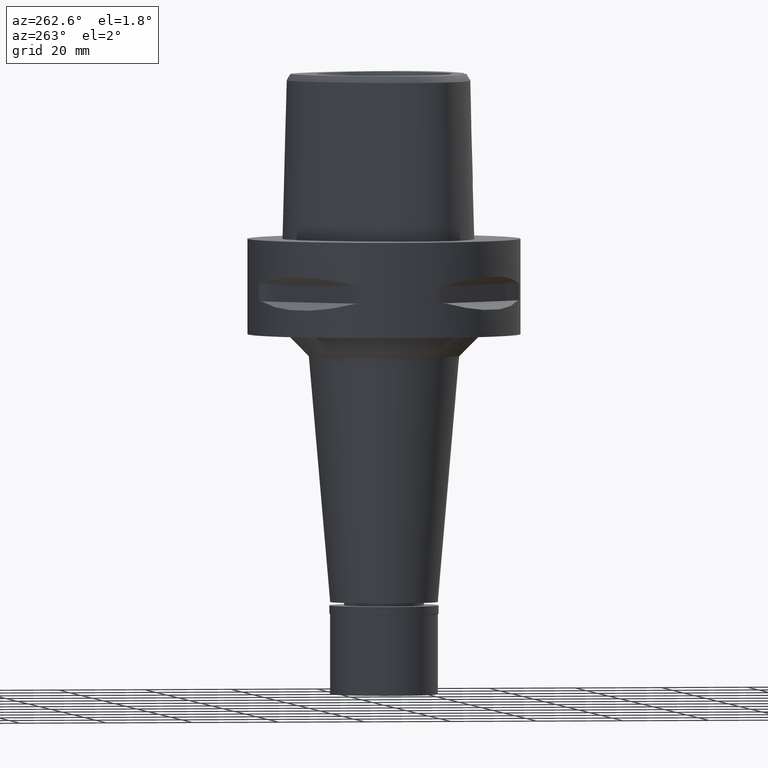
[diagram: clean part render]
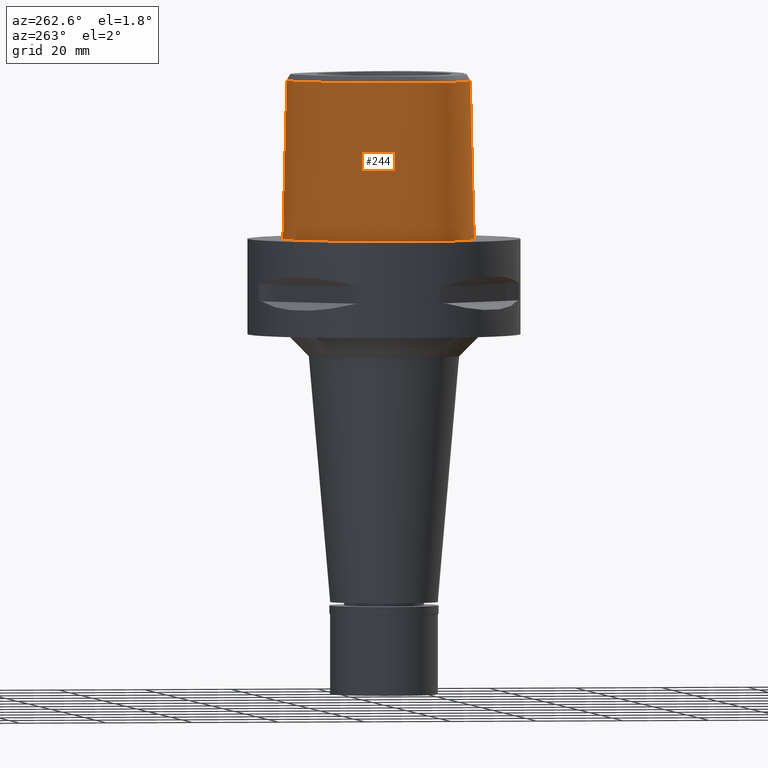
[diagram: same view with one face highlighted and labeled with its STEP entity id]
A machine part, auxiliary view. The second image highlights one B-rep face of the part: STEP entity #244.
In plain terms, the highlighted face is a freeform B-spline surface patch.
Its self-contained STEP definition (entity closure, byte-faithful):
#4 = CARTESIAN_POINT ( 'NONE',  ( -10.34823247807999991, 18.70095511042000069, 24.59139597767000041 ) ) ;
#19 = CARTESIAN_POINT ( 'NONE',  ( -5.098437017460036635, 22.52602539107009605, -1.896419848414210296E-08 ) ) ;
#52 = CARTESIAN_POINT ( 'NONE',  ( 0.4560943669544000323, -20.69106768041000066, -0.7304375042870999701 ) ) ;
#59 = CARTESIAN_POINT ( 'NONE',  ( 2.041042029990999821E-08, -19.88004246002000031, 31.80000004972000127 ) ) ;
#62 = CARTESIAN_POINT ( 'NONE',  ( -3.637738201363999835, -19.56971413236999879, 36.52186244848000030 ) ) ;
#79 = CARTESIAN_POINT ( 'NONE',  ( -6.175998627187000878, -19.37631808830999702, 37.25231271863999893 ) ) ;
#124 = CARTESIAN_POINT ( 'NONE',  ( -6.344715575917999395, -20.31619964533000200, -0.7304375042870999701 ) ) ;
#165 = CARTESIAN_POINT ( 'NONE',  ( -7.300578999876572439, -19.07170748891979528, 36.52186244848009267 ) ) ;
#200 = CARTESIAN_POINT ( 'NONE',  ( 0.0000000000000000000, -20.18628283968999781, 19.55000000000000071 ) ) ;
#205 = CARTESIAN_POINT ( 'NONE',  ( -3.637738201363999835, -19.56971413236999879, 36.52186244848000030 ) ) ;
#235 = CARTESIAN_POINT ( 'NONE',  ( -2.841055161952163122, -20.10000556631501922, 18.38634273630946581 ) ) ;
#244 = ADVANCED_FACE ( 'NONE', ( #748 ), #4528, .T. ) ;
#259 = CARTESIAN_POINT ( 'NONE',  ( -3.081149392577402502, -20.08583124627777750, 18.14629112890300533 ) ) ;
#282 = CARTESIAN_POINT ( 'NONE',  ( -2.360389010911049912, -20.12578017861218527, 18.79373387522194605 ) ) ;
#308 = CARTESIAN_POINT ( 'NONE',  ( -3.294464282139044631, -20.19175818983875814, 13.14063372506621619 ) ) ;
#312 = CARTESIAN_POINT ( 'NONE',  ( -17.25769868647000038, 9.963736633597999770, 37.25231271863999893 ) ) ;
#330 = CARTESIAN_POINT ( 'NONE',  ( -3.538328569005044333, -20.05892019842456619, 17.47427695038981810 ) ) ;
#333 = CARTESIAN_POINT ( 'NONE',  ( -20.94844325464999812, -10.61175396820999950, -0.7304375042870999701 ) ) ;
#352 = CARTESIAN_POINT ( 'NONE',  ( -1.592612062464956013, -20.34460894491118310, 11.77623291199201816 ) ) ;
#357 = CARTESIAN_POINT ( 'NONE',  ( -7.259695513654000010, 20.78233577661999831, 24.59139597767000041 ) ) ;
#359 = ORIENTED_EDGE ( 'NONE', *, *, #2860, .T. ) ;
#371 = CARTESIAN_POINT ( 'NONE',  ( 6.820263939085462450E-09, -19.98212988583477312, 27.71666688228245690 ) ) ;
#374 = VERTEX_POINT ( 'NONE', #3373 ) ;
#383 = CARTESIAN_POINT ( 'NONE',  ( -0.6149727124677999424, 23.51889464489000048, -0.7304375042870999701 ) ) ;
#423 = B_SPLINE_CURVE_WITH_KNOTS ( 'NONE', 3,
 ( #3112, #371, #3859, #1508 ),
 .UNSPECIFIED., .F., .F.,
 ( 4, 4 ),
 ( 0.0000000000000000000, 1.000000000000000000 ),
 .UNSPECIFIED. ) ;
#428 = CARTESIAN_POINT ( 'NONE',  ( -2.086814383339310019, -20.31269213283853503, 12.02647857451320412 ) ) ;
#431 = CARTESIAN_POINT ( 'NONE',  ( -1.886862291998999908, -20.71358859472999825, -0.7304375042870999701 ) ) ;
#441 = CARTESIAN_POINT ( 'NONE',  ( -1.656252726929893671, -20.15609978928698354, 19.19765142506412303 ) ) ;
#455 = CARTESIAN_POINT ( 'NONE',  ( -1.572984596531426860, -20.34569619827912845, 11.76794029727377122 ) ) ;
#461 = CARTESIAN_POINT ( 'NONE',  ( -11.13012658277000000, -18.61140123527999890, 11.93047923668999921 ) ) ;
#472 = CARTESIAN_POINT ( 'NONE',  ( -13.70645028110869212, 15.04851272300747489, 36.52186244848009267 ) ) ;
#474 = DIRECTION ( 'NONE',  ( 1.873945896586959657E-12, 0.02499051290962944413, -0.9996876883629776112 ) ) ;
#495 = CARTESIAN_POINT ( 'NONE',  ( -0.8941136475798194816, -20.17742596329177474, 19.45229334933474163 ) ) ;
#518 = CARTESIAN_POINT ( 'NONE',  ( -0.5036866637249096668, -20.18406862059044116, 19.52728785669985356 ) ) ;
#577 = CARTESIAN_POINT ( 'NONE',  ( -19.88562090098043456, 4.345879983792091394, 36.52186244848009267 ) ) ;
#615 = CARTESIAN_POINT ( 'NONE',  ( -2.887412005234532231, -20.23974548682601693, 12.66003157092501752 ) ) ;
#619 = B_SPLINE_CURVE_WITH_KNOTS ( 'NONE', 3,
 ( #879, #2435, #518, #495, #2074, #2868, #3977, #4430, #1976, #3929, #3538, #1593, #441, #3560, #4750, #2789, #2407, #2026, #4918, #5018, #2574, #282, #1840, #4975, #1787, #2270, #4146, #235, #4557, #3452, #259, #2604, #4177, #330, #1466, #3843, #3351, #1054, #2166, #1812, #3733, #3787, #3817, #695, #3430, #670, #1889, #1408, #4224, #3018, #1514, #2989, #3063, #1024, #2220, #4198, #2650, #933, #646, #3403, #1436, #4586, #2195, #2548, #1107, #1867, #1082, #3761, #2626, #4116, #2244, #308, #5000, #1492, #3039, #4608, #721, #615, #2961, #4529, #3375, #4946, #428, #1538, #2759, #3919, #1938, #3506, #352, #455, #2014, #4250, #2396, #1230, #2679 ),
 .UNSPECIFIED., .F., .F.,
 ( 4, 2, 2, 1, 1, 1, 2, 2, 2, 2, 1, 2, 2, 2, 1, 1, 1, 2, 2, 2, 2, 2, 1, 1, 2, 2, 2, 2, 1, 2, 2, 2, 2, 1, 1, 1, 2, 2, 2, 2, 1, 2, 2, 2, 1, 1, 1, 2, 2, 2, 2, 2, 1, 1, 2, 2, 4 ),
 ( 0.0000000000000000000, 0.06249999999999597544, 0.09374999999999399092, 0.1093749999999929085, 0.1171874999999923533, 0.1210937499999921035, 0.1230468749999918260, 0.1249999999999915484, 0.1562499999999856781, 0.1718749999999824862, 0.1796874999999810985, 0.1835937499999803768, 0.1874999999999796552, 0.2187499999999771017, 0.2343749999999757694, 0.2421874999999754086, 0.2460937499999749367, 0.2480468749999746869, 0.2499999999999744094, 0.3124999999999654721, 0.3437499999999609757, 0.3593749999999591438, 0.3671874999999578115, 0.3710937499999571454, 0.3730468749999572009, 0.3749999999999573119, 0.4374999999999618638, 0.4687499999999640843, 0.4843749999999652500, 0.4921874999999662492, 0.4999999999999672484, 0.5624999999999770184, 0.5937499999999821254, 0.6093749999999846789, 0.6171874999999859002, 0.6210937499999865663, 0.6230468749999867883, 0.6249999999999868994, 0.6562499999999910072, 0.6718749999999930056, 0.6796874999999941158, 0.6835937499999945599, 0.6874999999999948930, 0.7187499999999971134, 0.7343749999999980016, 0.7421874999999985567, 0.7460937499999986677, 0.7480468749999987788, 0.7499999999999988898, 0.8124999999999995559, 0.8437500000000000000, 0.8593750000000001110, 0.8671875000000001110, 0.8710937500000002220, 0.8730468750000002220, 0.8750000000000001110, 1.000000000000000000 ),
 .UNSPECIFIED. ) ;
#646 = CARTESIAN_POINT ( 'NONE',  ( -3.765489374950850454, -20.12204791086957201, 14.00864527312965357 ) ) ;
#656 = DIRECTION ( 'NONE',  ( -7.363425292475789222E-13, -0.02499051295389925070, -0.9996876883618708298 ) ) ;
#670 = CARTESIAN_POINT ( 'NONE',  ( -4.019649019913004828, -20.04316019033985086, 16.01163126943011505 ) ) ;
#690 = CARTESIAN_POINT ( 'NONE',  ( -14.67337964443364484, -17.21410156291689475, -1.896419848414210296E-08 ) ) ;
#695 = CARTESIAN_POINT ( 'NONE',  ( -3.925407708630975545, -20.04099055260220652, 16.53138977182821634 ) ) ;
#698 = CARTESIAN_POINT ( 'NONE',  ( -13.69241990883000071, 15.03666401625000049, 37.25231271863999893 ) ) ;
#721 = CARTESIAN_POINT ( 'NONE',  ( -2.904838724128466776, -20.23782704190360704, 12.67778573503113293 ) ) ;
#725 = CARTESIAN_POINT ( 'NONE',  ( -20.16779749023000079, 4.447573699151999627, 24.59139597767000041 ) ) ;
#748 = FACE_OUTER_BOUND ( 'NONE', #2901, .T. ) ;
#762 = CARTESIAN_POINT ( 'NONE',  ( -2.564517727054335783, 23.29328125046647457, -1.896419848414210296E-08 ) ) ;
#772 = CARTESIAN_POINT ( 'NONE',  ( -10.14358084944999838, 18.45723428854999781, 37.25231271863999893 ) ) ;
#783 = ORIENTED_EDGE ( 'NONE', *, *, #2977, .F. ) ;
#801 = CARTESIAN_POINT ( 'NONE',  ( -19.86834446285000055, 4.339653722477001097, 37.25231271863999893 ) ) ;
#802 = EDGE_CURVE ( 'NONE', #2323, #3339, #4592, .T. ) ;
#830 = CARTESIAN_POINT ( 'NONE',  ( -2.503154198993446489, -19.81241979316563473, 31.80000012753039940 ) ) ;
#846 = CARTESIAN_POINT ( 'NONE',  ( -20.65879055737000058, -10.48283622772000001, 11.93047923668999921 ) ) ;
#879 = CARTESIAN_POINT ( 'NONE',  ( 0.0000000000000000000, -20.18628283968999781, 19.55000000000000071 ) ) ;
#911 = CARTESIAN_POINT ( 'NONE',  ( -16.39211280191511122, -14.95758113319380733, 36.52186244848009267 ) ) ;
#925 = CARTESIAN_POINT ( 'NONE',  ( -16.57726045036999807, -15.19304475951000022, 24.59139597767000041 ) ) ;
#933 = CARTESIAN_POINT ( 'NONE',  ( -3.788010122578853611, -20.11815763408451474, 14.06624340821270103 ) ) ;
#935 = ORIENTED_EDGE ( 'NONE', *, *, #1833, .T. ) ;
#1024 = CARTESIAN_POINT ( 'NONE',  ( -3.952964639637182476, -20.08622609015915472, 14.60890045227376355 ) ) ;
#1049 = EDGE_CURVE ( 'NONE', #2323, #1413, #4520, .T. ) ;
#1054 = CARTESIAN_POINT ( 'NONE',  ( -3.704467467890588672, -20.04996865237293235, 17.13733399074684627 ) ) ;
#1082 = CARTESIAN_POINT ( 'NONE',  ( -3.466483550186856721, -20.16833646136318592, 13.40542637771266321 ) ) ;
#1085 = CARTESIAN_POINT ( 'NONE',  ( 0.7234356448519999594, 23.47140592231999889, -0.7304375042870999701 ) ) ;
#1102 = CARTESIAN_POINT ( 'NONE',  ( -16.95889172623143182, -15.67838867225140120, -1.896419848414210296E-08 ) ) ;
#1107 = CARTESIAN_POINT ( 'NONE',  ( -3.553766164806682948, -20.15576042543187540, 13.55638603583821222 ) ) ;
#1110 = CARTESIAN_POINT ( 'NONE',  ( -21.57281238841000359, -9.001246193933999606, -0.7304375042870999701 ) ) ;
#1135 = CARTESIAN_POINT ( 'NONE',  ( -0.5821289320506999321, 22.88453105504999741, 24.59139597767000041 ) ) ;
#1163 = CARTESIAN_POINT ( 'NONE',  ( -21.99640701160999967, -0.2778990169930000143, -0.7304375042870999701 ) ) ;
#1184 = CARTESIAN_POINT ( 'NONE',  ( -22.26285556099000118, -4.100361500074999554, -0.7304375042870999701 ) ) ;
#1230 = CARTESIAN_POINT ( 'NONE',  ( -0.5047993661875557203, -20.38876923348000147, 11.44999999999999929 ) ) ;
#1233 = CARTESIAN_POINT ( 'NONE',  ( -14.52531267210999921, -16.95413755088999963, 11.93047923668999921 ) ) ;
#1257 = CARTESIAN_POINT ( 'NONE',  ( 0.6840430852723000665, -20.68668154549000349, -0.7304375042870999701 ) ) ;
#1289 = CARTESIAN_POINT ( 'NONE',  ( -3.637738201363999835, -19.56971413236999879, 36.52186244848000030 ) ) ;
#1311 = CARTESIAN_POINT ( 'NONE',  ( -18.12052913902999762, -13.74516036726999957, 24.59139597767000041 ) ) ;
#1362 = ORIENTED_EDGE ( 'NONE', *, *, #3606, .F. ) ;
#1364 = ORIENTED_EDGE ( 'NONE', *, *, #802, .T. ) ;
#1408 = CARTESIAN_POINT ( 'NONE',  ( -4.044848056823782123, -20.04744994059091923, 15.72117637690715419 ) ) ;
#1413 = VERTEX_POINT ( 'NONE', #3921 ) ;
#1436 = CARTESIAN_POINT ( 'NONE',  ( -3.748882549353984128, -20.12487725615871170, 13.96753193210200905 ) ) ;
#1466 = CARTESIAN_POINT ( 'NONE',  ( -3.623054736480678883, -20.05423874947347684, 17.31100359227538732 ) ) ;
#1472 = CARTESIAN_POINT ( 'NONE',  ( -4.750826260852000438, 21.65775815885000100, 37.25231271863999893 ) ) ;
#1492 = CARTESIAN_POINT ( 'NONE',  ( -3.089131642920631471, -20.21685897408096722, 12.88004451868196654 ) ) ;
#1495 = CARTESIAN_POINT ( 'NONE',  ( -20.46725051761000103, 4.555493675825999844, 11.93047923668999921 ) ) ;
#1508 = CARTESIAN_POINT ( 'NONE',  ( 0.0000000000000000000, -20.18628283968999781, 19.55000000000000071 ) ) ;
#1514 = CARTESIAN_POINT ( 'NONE',  ( -4.050018014422888335, -20.05167593067619336, 15.52805627100407015 ) ) ;
#1518 = CARTESIAN_POINT ( 'NONE',  ( 0.4823619555687999605, 23.48603817775999758, -0.7304375042870999701 ) ) ;
#1538 = CARTESIAN_POINT ( 'NONE',  ( -1.975954942184611429, -20.32065689222564586, 11.96260358355417175 ) ) ;
#1564 = CARTESIAN_POINT ( 'NONE',  ( -7.420053175795000122, 21.05635751786999776, 11.93047923668999921 ) ) ;
#1587 = CARTESIAN_POINT ( 'NONE',  ( -14.68244496902000051, -17.23001772647999985, -0.7304375042870999701 ) ) ;
#1593 = CARTESIAN_POINT ( 'NONE',  ( -1.543048130381289074, -20.15993798682084304, 19.24453660913574637 ) ) ;
#1624 = CARTESIAN_POINT ( 'NONE',  ( -10.15538788052679031, 18.47129535093755237, 36.52186244848009267 ) ) ;
#1637 = CARTESIAN_POINT ( 'NONE',  ( -1.870070495886999806, -20.39691399793000315, 11.93047923668999921 ) ) ;
#1660 = CARTESIAN_POINT ( 'NONE',  ( -19.40779775205000135, -12.64961932049999938, 11.93047923668999921 ) ) ;
#1686 = CARTESIAN_POINT ( 'NONE',  ( 0.4439216934313999774, -19.74161867288999872, 37.25231271863999893 ) ) ;
#1690 = CARTESIAN_POINT ( 'NONE',  ( -3.736722311398999796, -19.67781602443999844, 31.80000000000000071 ) ) ;
#1697 = CARTESIAN_POINT ( 'NONE',  ( -0.7901461696974706461, 22.56201478746970679, 36.52186244848009977 ) ) ;
#1787 = CARTESIAN_POINT ( 'NONE',  ( -2.696415149899703323, -20.10825975497923679, 18.52316981035092169 ) ) ;
#1812 = CARTESIAN_POINT ( 'NONE',  ( -3.732557508995179685, -20.04859144260195336, 17.07180291399460614 ) ) ;
#1833 = EDGE_CURVE ( 'NONE', #4746, #374, #2676, .T. ) ;
#1840 = CARTESIAN_POINT ( 'NONE',  ( -2.467128207655710614, -20.12044499745018911, 18.71456023906525701 ) ) ;
#1843 = CARTESIAN_POINT ( 'NONE',  ( -13.93560877810999976, 15.24203801071999997, 24.59139597767000041 ) ) ;
#1867 = CARTESIAN_POINT ( 'NONE',  ( -3.520475118946976067, -20.16064927175088428, 13.49656734865700791 ) ) ;
#1870 = CARTESIAN_POINT ( 'NONE',  ( -10.75753573531999940, 19.18839675414999846, -0.7304375042870999701 ) ) ;
#1889 = CARTESIAN_POINT ( 'NONE',  ( -4.038031914720376037, -20.04584209172325515, 15.81781984753358117 ) ) ;
#1895 = EDGE_CURVE ( 'NONE', #2794, #3906, #423, .T. ) ;
#1905 = CARTESIAN_POINT ( 'NONE',  ( -21.55524826054831422, -8.996025390761106522, -1.896419848414210296E-08 ) ) ;
#1915 = CARTESIAN_POINT ( 'NONE',  ( -7.099337851512999897, 20.50831403537999620, 37.25231271863999893 ) ) ;
#1938 = CARTESIAN_POINT ( 'NONE',  ( -1.678454493248098256, -20.33967188086277389, 11.81405957882488345 ) ) ;
#1943 = CARTESIAN_POINT ( 'NONE',  ( -20.76670354499000126, 4.663413652501000151, -0.7304375042870999701 ) ) ;
#1960 = CARTESIAN_POINT ( 'NONE',  ( -2.113823673092746880, -20.67500000047041908, -1.896419848414210296E-08 ) ) ;
#1970 = CARTESIAN_POINT ( 'NONE',  ( -19.54161194190999851, -11.28235491328999984, 37.25231271863999893 ) ) ;
#1976 = CARTESIAN_POINT ( 'NONE',  ( -1.492522727690082096, -20.16161937968067974, 19.26502569008681931 ) ) ;
#1994 = CARTESIAN_POINT ( 'NONE',  ( -19.81622837504999879, -11.44090478549000167, 24.59139597767000041 ) ) ;
#2014 = CARTESIAN_POINT ( 'NONE',  ( -1.559921522258001625, -20.34641501698343546, 11.76246137009469805 ) ) ;
#2018 = CARTESIAN_POINT ( 'NONE',  ( -20.36913786010000038, -10.35391848722999875, 24.59139597767000041 ) ) ;
#2026 = CARTESIAN_POINT ( 'NONE',  ( -2.141634863663408161, -20.13611892945429105, 18.93776449056395705 ) ) ;
#2031 = CARTESIAN_POINT ( 'NONE',  ( -4.757642277158517174, 21.67478330407558218, 36.52186244848009267 ) ) ;
#2045 = CARTESIAN_POINT ( 'NONE',  ( -18.89485297071000147, -12.27684387320999981, 37.25231271863999893 ) ) ;
#2065 = CARTESIAN_POINT ( 'NONE',  ( -1.836486903664000137, -19.76356480431000051, 37.25231271863999893 ) ) ;
#2074 = CARTESIAN_POINT ( 'NONE',  ( -1.025211814385354359, -20.17465818941732891, 19.42048404905330727 ) ) ;
#2077 = CARTESIAN_POINT ( 'NONE',  ( -2.376843896516978916, 22.39422508474208584, 36.52186244848009977 ) ) ;
#2120 = CARTESIAN_POINT ( 'NONE',  ( -1.202353365320000217E-12, -20.38876923348000147, 11.44999999999999929 ) ) ;
#2151 = LINE ( 'NONE', #4162, #3258 ) ;
#2166 = CARTESIAN_POINT ( 'NONE',  ( -3.724287987559096180, -20.04899117660410113, 17.09139312267862465 ) ) ;
#2190 = VECTOR ( 'NONE', #474, 999.9999999999998863 ) ;
#2195 = CARTESIAN_POINT ( 'NONE',  ( -3.698122373792616990, -20.13343971463959647, 13.84482020408002612 ) ) ;
#2220 = CARTESIAN_POINT ( 'NONE',  ( -3.921269265875852561, -20.09311890564765335, 14.47775228275580695 ) ) ;
#2244 = CARTESIAN_POINT ( 'NONE',  ( -3.377353639916688355, -20.18061854612784600, 13.26476903757044745 ) ) ;
#2247 = CARTESIAN_POINT ( 'NONE',  ( -21.13154902285000247, -6.714587097183999376, 37.25231271863999893 ) ) ;
#2270 = CARTESIAN_POINT ( 'NONE',  ( -2.781497320434850540, -20.10345565782015953, 18.44409576488488156 ) ) ;
#2273 = CARTESIAN_POINT ( 'NONE',  ( -20.96392260672000063, -8.820258345909000042, 24.59139597767000041 ) ) ;
#2287 = CARTESIAN_POINT ( 'NONE',  ( -20.74942740924353757, 4.657187500162169869, -1.896419848414210296E-08 ) ) ;
#2296 = CARTESIAN_POINT ( 'NONE',  ( -7.580410837936000235, 21.33037925910999988, -0.7304375042870999701 ) ) ;
#2310 = CARTESIAN_POINT ( 'NONE',  ( -22.05732874369456198, -6.847636718817597945, -1.896419848414210296E-08 ) ) ;
#2322 = CARTESIAN_POINT ( 'NONE',  ( -14.17879764737999970, 15.44741200520000035, 11.93047923668999921 ) ) ;
#2323 = VERTEX_POINT ( 'NONE', #205 ) ;
#2340 = CARTESIAN_POINT ( 'NONE',  ( -18.56841065176654126, -14.16937988313790520, -1.896419848414210296E-08 ) ) ;
#2351 = CARTESIAN_POINT ( 'NONE',  ( -22.07548128675999877, -6.850245534859000784, -0.7304375042870999701 ) ) ;
#2396 = CARTESIAN_POINT ( 'NONE',  ( -1.035503055404366268, -20.37488775911208094, 11.54570873351844185 ) ) ;
#2400 = CARTESIAN_POINT ( 'NONE',  ( -18.35112160085999733, -13.96357041487999950, 11.93047923668999921 ) ) ;
#2407 = CARTESIAN_POINT ( 'NONE',  ( -2.095753548414849732, -20.13818364214428058, 18.96577014705866304 ) ) ;
#2426 = CARTESIAN_POINT ( 'NONE',  ( -6.288476593008000215, -20.00290579299000271, 11.93047923668999921 ) ) ;
#2435 = CARTESIAN_POINT ( 'NONE',  ( -0.2473412322782437833, -20.18628283969000492, 19.54999999999999716 ) ) ;
#2458 = CARTESIAN_POINT ( 'NONE',  ( -3.704239276368590961, -19.64128040965313460, 33.37395414949332917 ) ) ;
#2462 = CARTESIAN_POINT ( 'NONE',  ( -18.90964971338561185, -12.28759719904571490, 36.52186244848009267 ) ) ;
#2476 = CARTESIAN_POINT ( 'NONE',  ( -16.38077702136000013, -14.94316472543000174, 37.25231271863999893 ) ) ;
#2548 = CARTESIAN_POINT ( 'NONE',  ( -3.646271025386284670, -20.14180172674243252, 13.73229968810705337 ) ) ;
#2574 = CARTESIAN_POINT ( 'NONE',  ( -2.236225399044929230, -20.13170464962382766, 18.87669531694418978 ) ) ;
#2604 = CARTESIAN_POINT ( 'NONE',  ( -3.258446753581195843, -20.07522384658358661, 17.91983021284886490 ) ) ;
#2621 = CARTESIAN_POINT ( 'NONE',  ( -19.64947365902704490, -12.82525390652630826, -1.896419848414210296E-08 ) ) ;
#2626 = CARTESIAN_POINT ( 'NONE',  ( -3.408875187705914023, -20.17633333109256455, 13.31312751153963170 ) ) ;
#2629 = CARTESIAN_POINT ( 'NONE',  ( 0.6658293067772000917, 22.52368298786000267, 37.25231271863999893 ) ) ;
#2646 = CARTESIAN_POINT ( 'NONE',  ( -9.636109285332001838E-12, -20.67499999999999716, 6.368979417932999865E-14 ) ) ;
#2650 = CARTESIAN_POINT ( 'NONE',  ( -3.830499027160743086, -20.11062698623123524, 14.18153512545000794 ) ) ;
#2653 = CARTESIAN_POINT ( 'NONE',  ( -21.26836749756999723, -8.910752269920999780, 11.93047923668999921 ) ) ;
#2660 = CARTESIAN_POINT ( 'NONE',  ( -1.645325546739000130E-11, 22.56201468012000078, 36.52186680743999858 ) ) ;
#2676 = B_SPLINE_CURVE_WITH_KNOTS ( 'NONE', 3,
 ( #2698, #3035, #762, #19, #3810, #3086, #4603, #4263, #2287, #3058, #4244, #2310, #1905, #4627, #4194, #2621, #2340, #1102, #690, #3884, #3523, #1960, #2646 ),
 .UNSPECIFIED., .F., .F.,
 ( 4, 1, 1, 1, 1, 1, 1, 1, 1, 1, 1, 1, 1, 1, 1, 1, 1, 1, 1, 1, 4 ),
 ( 0.0000000000000000000, 0.04166666666747000092, 0.08333333333408000920, 0.1250000000006999956, 0.1666666666674000152, 0.2500000000006000200, 0.3333333333337999971, 0.4166666666671000052, 0.5000000000002999823, 0.5416666666670000296, 0.5833333333335000148, 0.6250000000001999512, 0.6458333333333999837, 0.6666666666667999674, 0.6875000000001000311, 0.7083333333333999837, 0.7500000000000000000, 0.7916666666667000474, 0.8333333333332000326, 0.9166666666666000163, 1.000000000000000000 ),
 .UNSPECIFIED. ) ;
#2679 = CARTESIAN_POINT ( 'NONE',  ( -1.202353365320000217E-12, -20.38876923348000147, 11.44999999999999929 ) ) ;
#2682 = CARTESIAN_POINT ( 'NONE',  ( -2.438150636946000205, 22.68791655379999739, 24.59139597767000041 ) ) ;
#2698 = CARTESIAN_POINT ( 'NONE',  ( 5.200812825892999658E-11, 23.47499999999000053, 6.084022174946000468E-14 ) ) ;
#2707 = CARTESIAN_POINT ( 'NONE',  ( -17.80867314840000049, 10.28184212449000157, 11.93047923668999921 ) ) ;
#2734 = CARTESIAN_POINT ( 'NONE',  ( -4.987110696595999926, 22.24795287849000047, 11.93047923668999921 ) ) ;
#2759 = CARTESIAN_POINT ( 'NONE',  ( -1.812541018710777552, -20.33144879143533501, 11.87771303032907610 ) ) ;
#2762 = CARTESIAN_POINT ( 'NONE',  ( -11.23887130101999965, -18.91049775601000249, -0.7304375042870999701 ) ) ;
#2789 = CARTESIAN_POINT ( 'NONE',  ( -2.004675599390202567, -20.14220382833396883, 19.01976680093374839 ) ) ;
#2794 = VERTEX_POINT ( 'NONE', #2819 ) ;
#2807 = CARTESIAN_POINT ( 'NONE',  ( 0.6657744365116999852, -19.73734279786000201, 37.25231271863999893 ) ) ;
#2819 = CARTESIAN_POINT ( 'NONE',  ( 2.041042029990999821E-08, -19.88004246002000031, 31.80000004972000127 ) ) ;
#2832 = CARTESIAN_POINT ( 'NONE',  ( -18.58171406267999970, -14.18198046248000033, -0.7304375042870999701 ) ) ;
#2845 = CARTESIAN_POINT ( 'NONE',  ( -1.645325546739000130E-11, 22.56201468012000078, 36.52186680743999858 ) ) ;
#2860 = EDGE_CURVE ( 'NONE', #3339, #4746, #3982, .T. ) ;
#2861 = CARTESIAN_POINT ( 'NONE',  ( -6.232237610098000147, -19.68961194064999987, 24.59139597767000041 ) ) ;
#2868 = CARTESIAN_POINT ( 'NONE',  ( -1.222079501498656517, -20.16967619644332288, 19.36182732690445718 ) ) ;
#2870 = CARTESIAN_POINT ( 'NONE',  ( -20.09619618740923386, -10.23243843868722180, 36.52186244848009267 ) ) ;
#2896 = CARTESIAN_POINT ( 'NONE',  ( -21.14970188363916037, -6.717195958887474561, 36.52186244848009267 ) ) ;
#2901 = EDGE_LOOP ( 'NONE', ( #783, #1362, #4951, #4316, #4189, #1364, #359, #935 ) ) ;
#2961 = CARTESIAN_POINT ( 'NONE',  ( -2.875757950340810165, -20.24102512592879677, 12.64823125461289166 ) ) ;
#2977 = EDGE_CURVE ( 'NONE', #4165, #374, #2151, .T. ) ;
#2989 = CARTESIAN_POINT ( 'NONE',  ( -4.049848995936176088, -20.05861656952050254, 15.25314035234744736 ) ) ;
#3018 = CARTESIAN_POINT ( 'NONE',  ( -4.049663826248560916, -20.05088590020228168, 15.56119206774791230 ) ) ;
#3021 = CARTESIAN_POINT ( 'NONE',  ( -21.36961517520000342, -0.3886497612381999978, 24.59139597767000041 ) ) ;
#3035 = CARTESIAN_POINT ( 'NONE',  ( -0.8548392423352408898, 23.47500000047394053, -1.896419848414209965E-08 ) ) ;
#3039 = CARTESIAN_POINT ( 'NONE',  ( -3.024127618929794092, -20.22444760030290567, 12.80466032897619222 ) ) ;
#3043 = CARTESIAN_POINT ( 'NONE',  ( -21.94536986537000089, -4.102220498781000479, 11.93047923668999921 ) ) ;
#3058 = CARTESIAN_POINT ( 'NONE',  ( -21.97832647833655173, -0.2810937499171287102, -1.896419848414210296E-08 ) ) ;
#3063 = CARTESIAN_POINT ( 'NONE',  ( -4.027530768679777218, -20.06783249596160346, 14.99855479655601442 ) ) ;
#3068 = CARTESIAN_POINT ( 'NONE',  ( 0.4569144596968000016, 22.85341807802999980, 24.59139597767000041 ) ) ;
#3086 = CARTESIAN_POINT ( 'NONE',  ( -10.74572891089846216, 19.17433593786872947, -1.896419848414210296E-08 ) ) ;
#3096 = CARTESIAN_POINT ( 'NONE',  ( -17.53318591742999999, 10.12278937903999854, 24.59139597767000041 ) ) ;
#3112 = CARTESIAN_POINT ( 'NONE',  ( 2.041042029990999821E-08, -19.88004246002000031, 31.80000004972000127 ) ) ;
#3121 = CARTESIAN_POINT ( 'NONE',  ( -21.62788416976000150, -4.104079497486999628, 24.59139597767000041 ) ) ;
#3147 = CARTESIAN_POINT ( 'NONE',  ( -14.36818037521000058, -16.67825737531000030, 24.59139597767000041 ) ) ;
#3172 = CARTESIAN_POINT ( 'NONE',  ( -20.07948516282000284, -10.22500074675000015, 37.25231271863999893 ) ) ;
#3176 = CARTESIAN_POINT ( 'NONE',  ( -3.671249123513567802, -19.60525173594972514, 34.94790829898666829 ) ) ;
#3195 = CARTESIAN_POINT ( 'NONE',  ( 0.4520368091134000510, -20.37458467789999972, 11.93047923668999921 ) ) ;
#3205 = CARTESIAN_POINT ( 'NONE',  ( -14.22011356156604478, -16.41829364186349949, 36.52186244848009267 ) ) ;
#3221 = CARTESIAN_POINT ( 'NONE',  ( -16.97022730838000371, -15.69280482769000074, -0.7304375042870999701 ) ) ;
#3233 = CARTESIAN_POINT ( 'NONE',  ( -21.07430010672678122, -0.4408303445193041958, 36.52186244848009267 ) ) ;
#3248 = CARTESIAN_POINT ( 'NONE',  ( 0.6779535356854000661, -20.37023529628000063, 11.93047923668999921 ) ) ;
#3258 = VECTOR ( 'NONE', #656, 1000.000000000000114 ) ;
#3339 = VERTEX_POINT ( 'NONE', #2660 ) ;
#3351 = CARTESIAN_POINT ( 'NONE',  ( -3.686560471764691371, -20.05088322548416713, 17.17709135335520543 ) ) ;
#3359 = EDGE_CURVE ( 'NONE', #2794, #1413, #4340, .T. ) ;
#3373 = CARTESIAN_POINT ( 'NONE',  ( -9.636109285332001838E-12, -20.67499999999999716, 6.368979417932999865E-14 ) ) ;
#3375 = CARTESIAN_POINT ( 'NONE',  ( -2.647727988100972762, -20.26593689667726395, 12.42012271607942608 ) ) ;
#3403 = CARTESIAN_POINT ( 'NONE',  ( -3.755562140673627258, -20.12374194796138838, 13.98397501487714578 ) ) ;
#3407 = CARTESIAN_POINT ( 'NONE',  ( -21.44619311082000124, -6.759806576408999845, 24.59139597767000041 ) ) ;
#3430 = CARTESIAN_POINT ( 'NONE',  ( -4.001055636210810285, -20.04208398455350348, 16.14154222857778365 ) ) ;
#3433 = CARTESIAN_POINT ( 'NONE',  ( -14.42198651666000053, 15.65278599968000073, -0.7304375042870999701 ) ) ;
#3452 = CARTESIAN_POINT ( 'NONE',  ( -2.857836109606428199, -20.09902107152585415, 18.36973246307252339 ) ) ;
#3479 = CARTESIAN_POINT ( 'NONE',  ( -18.08416037936000009, 10.44089486992999838, -0.7304375042870999701 ) ) ;
#3506 = CARTESIAN_POINT ( 'NONE',  ( -1.638635025836899350, -20.34200884320552660, 11.79610711465294060 ) ) ;
#3509 = CARTESIAN_POINT ( 'NONE',  ( -21.05621925699000130, -0.4440251333607999618, 37.25231271863999893 ) ) ;
#3523 = CARTESIAN_POINT ( 'NONE',  ( -6.341471019295814138, -20.29812500047199109, -1.896419848414210296E-08 ) ) ;
#3538 = CARTESIAN_POINT ( 'NONE',  ( -1.533377486156251468, -20.16026360294687336, 19.24851053760684749 ) ) ;
#3553 = CARTESIAN_POINT ( 'NONE',  ( -16.77374387937000222, -15.44292479359999959, 11.93047923668999921 ) ) ;
#3560 = CARTESIAN_POINT ( 'NONE',  ( -1.768917262173088201, -20.15190475906379319, 19.14568281053183796 ) ) ;
#3564 = CARTESIAN_POINT ( 'NONE',  ( -7.108589416785052073, 20.52412325828333550, 36.52186244848009267 ) ) ;
#3580 = CARTESIAN_POINT ( 'NONE',  ( -11.02138186450999946, -18.31230471454999886, 24.59139597767000041 ) ) ;
#3604 = CARTESIAN_POINT ( 'NONE',  ( -1.853278699775999794, -20.08023940112000005, 24.59139597767000041 ) ) ;
#3606 = EDGE_CURVE ( 'NONE', #3906, #4165, #619, .T. ) ;
#3612 = CARTESIAN_POINT ( 'NONE',  ( -1.251533273950641290, -19.88005341380265989, 31.80000012753039940 ) ) ;
#3630 = CARTESIAN_POINT ( 'NONE',  ( -14.21104807831000016, -16.40237719972000008, 37.25231271863999893 ) ) ;
#3641 = CARTESIAN_POINT ( 'NONE',  ( -20.67704215115693955, -8.734985316449483506, 36.52186244848009267 ) ) ;
#3670 = CARTESIAN_POINT ( 'NONE',  ( -4.467522189394555809, -19.48130287050912202, 36.52186244848009267 ) ) ;
#3733 = CARTESIAN_POINT ( 'NONE',  ( -3.738021026999547747, -20.04832921641929389, 17.05876513949583284 ) ) ;
#3734 = CARTESIAN_POINT ( 'NONE',  ( 5.200812825892999658E-11, 23.47499999999000053, 6.084022174946000468E-14 ) ) ;
#3761 = CARTESIAN_POINT ( 'NONE',  ( -3.438474044887640968, -20.17226853620277538, 13.35950353148250258 ) ) ;
#3787 = CARTESIAN_POINT ( 'NONE',  ( -3.740129524201756706, -20.04822853724977705, 17.05370687140961650 ) ) ;
#3810 = CARTESIAN_POINT ( 'NONE',  ( -7.571159434591135273, 21.31457031291043336, -1.896419848414210296E-08 ) ) ;
#3817 = CARTESIAN_POINT ( 'NONE',  ( -3.848403410397717384, -20.04310851184499498, 16.79149714040716646 ) ) ;
#3821 = CARTESIAN_POINT ( 'NONE',  ( -2.568271204878000091, 23.31126237959000136, -0.7304375042870999701 ) ) ;
#3843 = CARTESIAN_POINT ( 'NONE',  ( -3.649474620159721017, -20.05281468735726591, 17.25706831817002396 ) ) ;
#3846 = CARTESIAN_POINT ( 'NONE',  ( -20.65947771586999693, -8.729764421896998527, 37.25231271863999893 ) ) ;
#3859 = CARTESIAN_POINT ( 'NONE',  ( 6.840259222971504027E-09, -20.08420636276286686, 23.63333344114116841 ) ) ;
#3868 = CARTESIAN_POINT ( 'NONE',  ( 0.6850314194687999736, 22.83959063268000378, 24.59139597767000041 ) ) ;
#3884 = CARTESIAN_POINT ( 'NONE',  ( -11.23259756743768101, -18.89324218795435328, -1.896419848414210296E-08 ) ) ;
#3894 = CARTESIAN_POINT ( 'NONE',  ( 0.4441907117607999944, 22.53710802815999870, 37.25231271863999893 ) ) ;
#3906 = VERTEX_POINT ( 'NONE', #200 ) ;
#3919 = CARTESIAN_POINT ( 'NONE',  ( -1.758544761671194889, -20.33485355119341165, 11.85123508312359419 ) ) ;
#3921 = CARTESIAN_POINT ( 'NONE',  ( -3.736722311398999796, -19.67781602443999844, 31.80000000000000071 ) ) ;
#3923 = CARTESIAN_POINT ( 'NONE',  ( -21.31039847413999766, -4.105938496193999754, 37.25231271863999893 ) ) ;
#3929 = CARTESIAN_POINT ( 'NONE',  ( -1.517038990534186782, -20.16080850842839922, 19.25515252244159115 ) ) ;
#3944 = CARTESIAN_POINT ( 'NONE',  ( -19.15132536137999963, -12.46323159686000004, 24.59139597767000041 ) ) ;
#3969 = CARTESIAN_POINT ( 'NONE',  ( -17.88993667719999792, -13.52675031965999963, 37.25231271863999893 ) ) ;
#3977 = CARTESIAN_POINT ( 'NONE',  ( -1.320565687276267219, -20.16697761691573376, 19.32976498245970021 ) ) ;
#3980 = CARTESIAN_POINT ( 'NONE',  ( -17.27359245833481793, 9.972912913898614562, 36.52186244848009267 ) ) ;
#3982 = LINE ( 'NONE', #4754, #2190 ) ;
#4002 = CARTESIAN_POINT ( 'NONE',  ( -3.736722311398999796, -19.67781602443999844, 31.80000000000000071 ) ) ;
#4019 = CARTESIAN_POINT ( 'NONE',  ( 0.6718639860985999857, -20.05378904707000132, 24.59139597767000041 ) ) ;
#4030 = CARTESIAN_POINT ( 'NONE',  ( -19.55745547456102429, -11.29150218116574678, 36.52186244848009267 ) ) ;
#4080 = CARTESIAN_POINT ( 'NONE',  ( -21.32871527669718859, -4.105831244394186896, 36.52186244848009267 ) ) ;
#4116 = CARTESIAN_POINT ( 'NONE',  ( -3.388781880796850388, -20.17907268769689821, 13.28211842279060306 ) ) ;
#4146 = CARTESIAN_POINT ( 'NONE',  ( -2.823299992937056579, -20.10104229143709276, 18.40378355436299529 ) ) ;
#4162 = CARTESIAN_POINT ( 'NONE',  ( -1.202353365320000217E-12, -20.38876923348000147, 11.44999999999999929 ) ) ;
#4165 = VERTEX_POINT ( 'NONE', #2120 ) ;
#4177 = CARTESIAN_POINT ( 'NONE',  ( -3.474550157058655220, -20.06258684786187629, 17.58509941785007058 ) ) ;
#4189 = ORIENTED_EDGE ( 'NONE', *, *, #1049, .F. ) ;
#4194 = CARTESIAN_POINT ( 'NONE',  ( -20.34961798598326155, -11.74885742210595829, -1.896419848414210296E-08 ) ) ;
#4198 = CARTESIAN_POINT ( 'NONE',  ( -3.862607746693165200, -20.10460055501438248, 14.28038032243066624 ) ) ;
#4202 = CARTESIAN_POINT ( 'NONE',  ( -5.105252914468000114, 22.54305023831000199, -0.7304375042870999701 ) ) ;
#4224 = CARTESIAN_POINT ( 'NONE',  ( -4.048193638326212707, -20.04945813672254218, 15.62509932612366015 ) ) ;
#4228 = CARTESIAN_POINT ( 'NONE',  ( -2.373090352979999818, 22.37624364090000029, 37.25231271863999893 ) ) ;
#4244 = CARTESIAN_POINT ( 'NONE',  ( -22.24453907902594096, -4.100468749997561169, -1.896419848414210296E-08 ) ) ;
#4250 = CARTESIAN_POINT ( 'NONE',  ( -1.554881956804977650, -20.34669101430225524, 11.76035872671679705 ) ) ;
#4253 = CARTESIAN_POINT ( 'NONE',  ( 0.4696382076328000643, 23.16972812788999647, 11.93047923668999921 ) ) ;
#4263 = CARTESIAN_POINT ( 'NONE',  ( -18.06826688567878492, 10.43171875023899631, -1.896419848414210296E-08 ) ) ;
#4297 = CARTESIAN_POINT ( 'NONE',  ( -4.868968478723999738, 21.95285551866999896, 24.59139597767000041 ) ) ;
#4316 = ORIENTED_EDGE ( 'NONE', *, *, #3359, .T. ) ;
#4323 = CARTESIAN_POINT ( 'NONE',  ( -20.36546124132999935, -11.75800452987999911, -0.7304375042870999701 ) ) ;
#4340 = B_SPLINE_CURVE_WITH_KNOTS ( 'NONE', 3,
 ( #59, #3612, #830, #4002 ),
 .UNSPECIFIED., .F., .F.,
 ( 4, 4 ),
 ( 0.0000000000000000000, 1.000000000000000000 ),
 .UNSPECIFIED. ) ;
#4401 = CARTESIAN_POINT ( 'NONE',  ( -10.91263714625999981, -18.01320819382000238, 37.25231271863999893 ) ) ;
#4412 = CARTESIAN_POINT ( 'NONE',  ( -10.91891098965139406, -18.03046406389962542, 36.52186244848009267 ) ) ;
#4424 = CARTESIAN_POINT ( 'NONE',  ( -20.09084480819000262, -11.59945465768000084, 11.93047923668999921 ) ) ;
#4430 = CARTESIAN_POINT ( 'NONE',  ( -1.435263460293925597, -20.16346600381253396, 19.28743623777244309 ) ) ;
#4457 = CARTESIAN_POINT ( 'NONE',  ( -17.90324032096344453, -13.53935111955042991, 36.52186244848009267 ) ) ;
#4520 = B_SPLINE_CURVE_WITH_KNOTS ( 'NONE', 3,
 ( #1289, #3176, #2458, #1690 ),
 .UNSPECIFIED., .F., .F.,
 ( 4, 4 ),
 ( 0.0000000000000000000, 1.000000000000000000 ),
 .UNSPECIFIED. ) ;
#4528 = B_SPLINE_SURFACE_WITH_KNOTS ( 'NONE', 3, 3, ( 
 ( #1085, #5022, #3868, #2629 ),
 ( #1518, #4253, #3068, #3894 ),
 ( #383, #4637, #1135, #5003 ),
 ( #3821, #5050, #2682, #4228 ),
 ( #4202, #2734, #4297, #1472 ),
 ( #2296, #1564, #357, #1915 ),
 ( #1870, #4688, #4, #772 ),
 ( #3433, #2322, #1843, #698 ),
 ( #3479, #2707, #3096, #312 ),
 ( #1943, #1495, #725, #801 ),
 ( #1163, #4979, #3021, #3509 ),
 ( #1184, #3043, #3121, #3923 ),
 ( #2351, #4612, #3407, #2247 ),
 ( #1110, #2653, #2273, #3846 ),
 ( #333, #846, #2018, #3172 ),
 ( #4323, #4424, #1994, #1970 ),
 ( #4745, #1660, #3944, #2045 ),
 ( #2832, #2400, #1311, #3969 ),
 ( #3221, #3553, #925, #2476 ),
 ( #1587, #1233, #3147, #3630 ),
 ( #2762, #461, #3580, #4401 ),
 ( #124, #2426, #2861, #79 ),
 ( #431, #1637, #3604, #2065 ),
 ( #52, #3195, #4766, #1686 ),
 ( #1257, #3248, #4019, #2807 ) ),
 .UNSPECIFIED., .F., .F., .F.,
 ( 4, 1, 1, 1, 1, 1, 1, 1, 1, 1, 1, 1, 1, 1, 1, 1, 1, 1, 1, 1, 1, 1, 4 ),
 ( 4, 4 ),
 ( -0.01173777939049999892, 0.0000000000000000000, 0.04166666666747000092, 0.08333333333408000920, 0.1250000000006999956, 0.1666666666674000152, 0.2500000000006000200, 0.3333333333337999971, 0.4166666666671000052, 0.5000000000002999823, 0.5416666666670000296, 0.5833333333335000148, 0.6250000000001999512, 0.6458333333333999837, 0.6666666666667999674, 0.6875000000001000311, 0.7083333333333999837, 0.7500000000000000000, 0.7916666666667000474, 0.8333333333332000326, 0.9166666666666000163, 1.000000000000000000, 1.008985696609000060 ),
 ( 6.009049615534999831E-09, 0.9999996935384000141 ),
 .UNSPECIFIED. ) ;
#4529 = CARTESIAN_POINT ( 'NONE',  ( -2.870809693610187452, -20.24156730632852330, 12.64324605246986089 ) ) ;
#4557 = CARTESIAN_POINT ( 'NONE',  ( -2.852856104025950579, -20.09931387729061214, 18.37467926461775747 ) ) ;
#4586 = CARTESIAN_POINT ( 'NONE',  ( -3.744859968352565183, -20.12555785049274348, 13.95773689203759282 ) ) ;
#4592 = B_SPLINE_CURVE_WITH_KNOTS ( 'NONE', 3,
 ( #62, #3670, #165, #4412, #3205, #911, #4457, #2462, #4030, #2870, #3641, #2896, #4080, #3233, #577, #3980, #472, #1624, #3564, #2031, #2077, #1697, #2845 ),
 .UNSPECIFIED., .F., .F.,
 ( 4, 1, 1, 1, 1, 1, 1, 1, 1, 1, 1, 1, 1, 1, 1, 1, 1, 1, 1, 1, 4 ),
 ( 0.0000000000000000000, 0.03580973941714746950, 0.1234633994702105386, 0.1672902294965317171, 0.2111170595230633107, 0.2549438895494896551, 0.2768573045627027995, 0.2987707195759160550, 0.3206841345892343931, 0.3425975496023424549, 0.3864243796288738819, 0.4302512096551950882, 0.4740780396817266817, 0.5617316997345792595, 0.6493853597875373085, 0.7370390198403898863, 0.8246926798932426861, 0.8685195099197742241, 0.9123463399462216072, 0.9561731699726585543, 1.000000000000000000 ),
 .UNSPECIFIED. ) ;
#4603 = CARTESIAN_POINT ( 'NONE',  ( -14.40795638995043149, 15.64093750030608554, -1.896419848414210296E-08 ) ) ;
#4608 = CARTESIAN_POINT ( 'NONE',  ( -2.945118222696918142, -20.23335776654030127, 12.71958560101020730 ) ) ;
#4612 = CARTESIAN_POINT ( 'NONE',  ( -21.76083719879000000, -6.805026055634000315, 11.93047923668999921 ) ) ;
#4627 = CARTESIAN_POINT ( 'NONE',  ( -20.93173252254848649, -10.60431640645175655, -1.896419848414210296E-08 ) ) ;
#4637 = CARTESIAN_POINT ( 'NONE',  ( -0.5985508222591999772, 23.20171284997000072, 11.93047923668999921 ) ) ;
#4688 = CARTESIAN_POINT ( 'NONE',  ( -10.55288410670000054, 18.94467593227999913, 11.93047923668999921 ) ) ;
#4745 = CARTESIAN_POINT ( 'NONE',  ( -19.66427014271999951, -12.83600704414999960, -0.7304375042870999701 ) ) ;
#4746 = VERTEX_POINT ( 'NONE', #3734 ) ;
#4750 = CARTESIAN_POINT ( 'NONE',  ( -1.944872162933173332, -20.14473830020670420, 19.05307826098763968 ) ) ;
#4754 = CARTESIAN_POINT ( 'NONE',  ( -1.645325546739000130E-11, 22.56201468012000078, 36.52186680743999858 ) ) ;
#4766 = CARTESIAN_POINT ( 'NONE',  ( 0.4479792512724000142, -20.05810167540000322, 24.59139597767000041 ) ) ;
#4918 = CARTESIAN_POINT ( 'NONE',  ( -2.187955111052514390, -20.13397228737158073, 18.90818030783675852 ) ) ;
#4946 = CARTESIAN_POINT ( 'NONE',  ( -2.421503357379948707, -20.28648737493530518, 12.24279215500327211 ) ) ;
#4951 = ORIENTED_EDGE ( 'NONE', *, *, #1895, .F. ) ;
#4975 = CARTESIAN_POINT ( 'NONE',  ( -2.621021505588481126, -20.11233874864636562, 18.58822781674864544 ) ) ;
#4979 = CARTESIAN_POINT ( 'NONE',  ( -21.68301109339999755, -0.3332743891156000338, 11.93047923668999921 ) ) ;
#5000 = CARTESIAN_POINT ( 'NONE',  ( -3.215358272887882229, -20.20174660046961890, 13.03391498473813748 ) ) ;
#5003 = CARTESIAN_POINT ( 'NONE',  ( -0.5657070418421000779, 22.56734926013000120, 37.25231271863999893 ) ) ;
#5018 = CARTESIAN_POINT ( 'NONE',  ( -2.218923952810184286, -20.13252298611806879, 18.88809933005989095 ) ) ;
#5022 = CARTESIAN_POINT ( 'NONE',  ( 0.7042335321603999665, 23.15549827749999778, 11.93047923668999921 ) ) ;
#5050 = CARTESIAN_POINT ( 'NONE',  ( -2.503210920912000148, 22.99958946669000071, 11.93047923668999921 ) ) ;